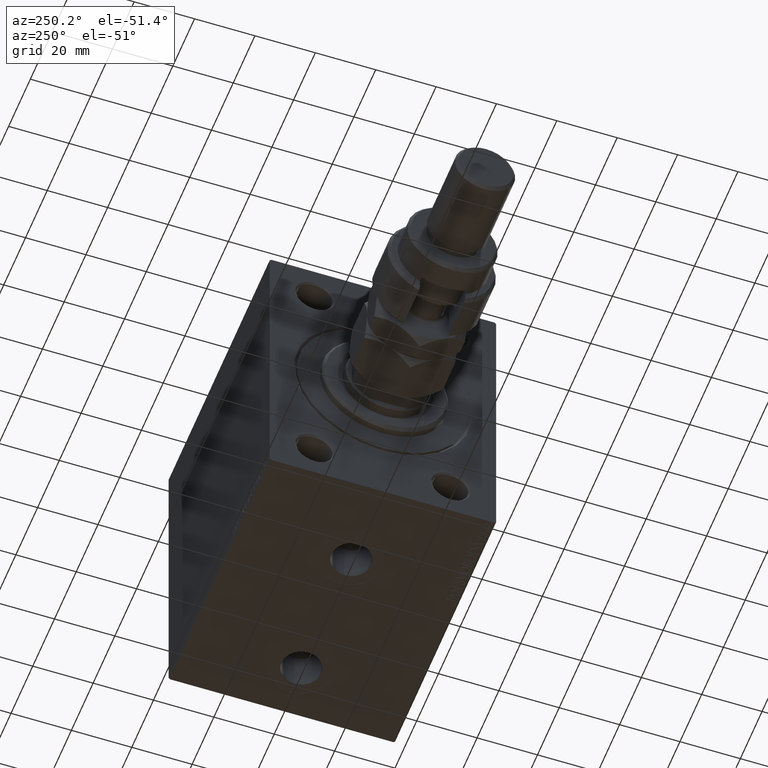
[diagram: clean part render]
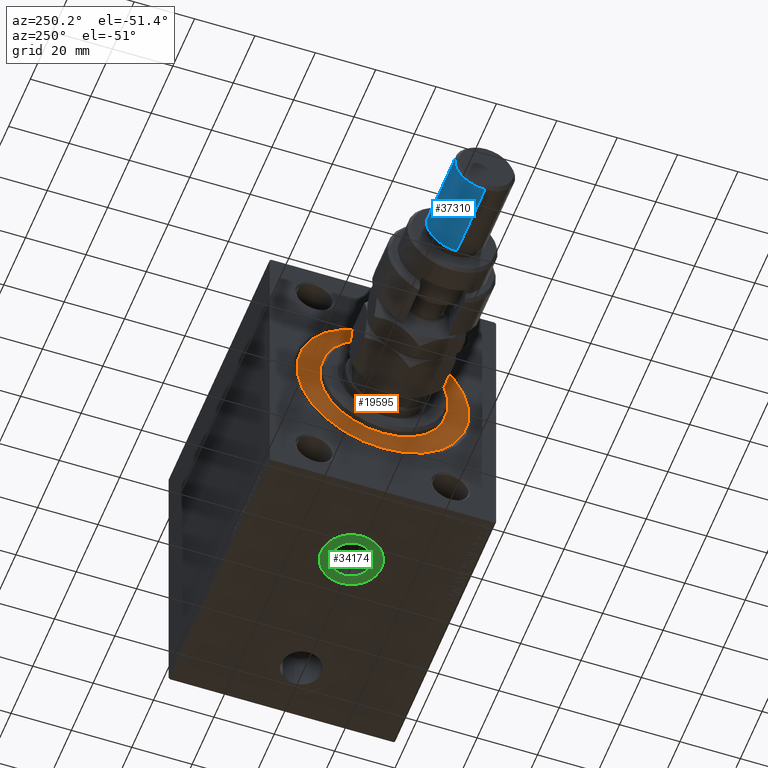
[diagram: same view with three faces highlighted in distinct colors, each labeled with its STEP entity id]
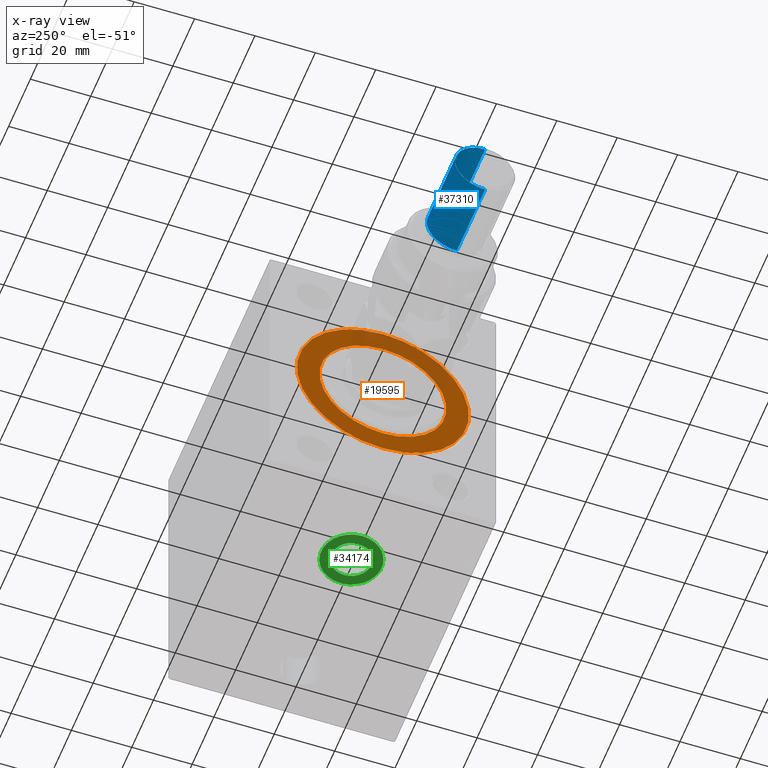
[diagram: x-ray of the same camera — body ghosted, the three highlighted faces saturated]
A machine part, auxiliary view with three faces highlighted in distinct colors.
The next image is the same camera in x-ray (body ghosted, the three faces saturated) — at least one of them is partly hidden behind the body in this view.
Their STEP definitions:

[orange] entity #19595 — the highlighted planar face has unit normal (1, -0, -0).
#4603 = ORIENTED_EDGE ( 'NONE', *, *, #32243, .F. ) ;
#4729 = CIRCLE ( 'NONE', #43763, 28.50000000000000000 ) ;
#4829 = AXIS2_PLACEMENT_3D ( 'NONE', #41017, #25162, #44220 ) ;
#5394 = FACE_OUTER_BOUND ( 'NONE', #6129, .T. ) ;
#5594 = CARTESIAN_POINT ( 'NONE',  ( 0.000000000000000000, 0.000000000000000000, -28.50000000000000000 ) ) ;
#6129 = EDGE_LOOP ( 'NONE', ( #37578, #13031 ) ) ;
#7191 = EDGE_LOOP ( 'NONE', ( #4603, #33677 ) ) ;
#8404 = CARTESIAN_POINT ( 'NONE',  ( 0.000000000000000000, 0.000000000000000000, 0.000000000000000000 ) ) ;
#8814 = DIRECTION ( 'NONE',  ( 0.000000000000000000, 0.000000000000000000, -1.000000000000000000 ) ) ;
#9135 = DIRECTION ( 'NONE',  ( 0.000000000000000000, 0.000000000000000000, 1.000000000000000000 ) ) ;
#13031 = ORIENTED_EDGE ( 'NONE', *, *, #41735, .F. ) ;
#14086 = AXIS2_PLACEMENT_3D ( 'NONE', #46454, #39355, #16144 ) ;
#15508 = EDGE_CURVE ( 'NONE', #44605, #42994, #4729, .T. ) ;
#16144 = DIRECTION ( 'NONE',  ( 0.000000000000000000, 0.000000000000000000, 1.000000000000000000 ) ) ;
#18546 = CIRCLE ( 'NONE', #24801, 21.00000000000000000 ) ;
#19595 = ADVANCED_FACE ( 'NONE', ( #20544, #5394 ), #20777, .F. ) ;
#20119 = CIRCLE ( 'NONE', #47462, 21.00000000000000000 ) ;
#20544 = FACE_BOUND ( 'NONE', #7191, .T. ) ;
#20777 = PLANE ( 'NONE',  #14086 ) ;
#24801 = AXIS2_PLACEMENT_3D ( 'NONE', #30566, #27139, #8814 ) ;
#25162 = DIRECTION ( 'NONE',  ( -1.000000000000000000, 0.000000000000000000, 0.000000000000000000 ) ) ;
#26567 = VERTEX_POINT ( 'NONE', #30879 ) ;
#26949 = CARTESIAN_POINT ( 'NONE',  ( 0.000000000000000000, 0.000000000000000000, 0.000000000000000000 ) ) ;
#27139 = DIRECTION ( 'NONE',  ( 1.000000000000000000, -0.000000000000000000, 0.000000000000000000 ) ) ;
#28704 = EDGE_CURVE ( 'NONE', #43430, #26567, #20119, .T. ) ;
#29905 = DIRECTION ( 'NONE',  ( 0.000000000000000000, 0.000000000000000000, -1.000000000000000000 ) ) ;
#30566 = CARTESIAN_POINT ( 'NONE',  ( 0.000000000000000000, 0.000000000000000000, 0.000000000000000000 ) ) ;
#30879 = CARTESIAN_POINT ( 'NONE',  ( 0.000000000000000000, 0.000000000000000000, 21.00000000000000000 ) ) ;
#32243 = EDGE_CURVE ( 'NONE', #26567, #43430, #18546, .T. ) ;
#33677 = ORIENTED_EDGE ( 'NONE', *, *, #28704, .F. ) ;
#33739 = CIRCLE ( 'NONE', #4829, 28.50000000000000000 ) ;
#34087 = DIRECTION ( 'NONE',  ( -1.000000000000000000, 0.000000000000000000, 0.000000000000000000 ) ) ;
#37578 = ORIENTED_EDGE ( 'NONE', *, *, #15508, .F. ) ;
#39355 = DIRECTION ( 'NONE',  ( -1.000000000000000000, 0.000000000000000000, 0.000000000000000000 ) ) ;
#41017 = CARTESIAN_POINT ( 'NONE',  ( 0.000000000000000000, 0.000000000000000000, 0.000000000000000000 ) ) ;
#41735 = EDGE_CURVE ( 'NONE', #42994, #44605, #33739, .T. ) ;
#41860 = DIRECTION ( 'NONE',  ( 1.000000000000000000, -0.000000000000000000, 0.000000000000000000 ) ) ;
#42994 = VERTEX_POINT ( 'NONE', #44647 ) ;
#43430 = VERTEX_POINT ( 'NONE', #46162 ) ;
#43763 = AXIS2_PLACEMENT_3D ( 'NONE', #8404, #34087, #9135 ) ;
#44220 = DIRECTION ( 'NONE',  ( 0.000000000000000000, 0.000000000000000000, 1.000000000000000000 ) ) ;
#44605 = VERTEX_POINT ( 'NONE', #5594 ) ;
#44647 = CARTESIAN_POINT ( 'NONE',  ( 0.000000000000000000, 3.490243377569956456E-15, 28.50000000000000000 ) ) ;
#46162 = CARTESIAN_POINT ( 'NONE',  ( 0.000000000000000000, 2.571758278209441661E-15, -21.00000000000000000 ) ) ;
#46454 = CARTESIAN_POINT ( 'NONE',  ( 0.000000000000000000, 0.000000000000000000, 0.000000000000000000 ) ) ;
#47462 = AXIS2_PLACEMENT_3D ( 'NONE', #26949, #41860, #29905 ) ;

[blue] entity #37310 — the highlighted cylindrical surface (edge-blend (fillet) strip) has radius 10 mm, axis along (1, -0, -0).
#140 = EDGE_CURVE ( 'NONE', #43535, #37388, #3252, .T. ) ;
#934 = ORIENTED_EDGE ( 'NONE', *, *, #1496, .T. ) ;
#1083 = ORIENTED_EDGE ( 'NONE', *, *, #140, .F. ) ;
#1496 = EDGE_CURVE ( 'NONE', #24896, #20481, #22715, .T. ) ;
#2875 = CARTESIAN_POINT ( 'NONE',  ( -10.00000000000000000, 0.000000000000000000, 54.99999999999998579 ) ) ;
#3150 = ORIENTED_EDGE ( 'NONE', *, *, #16861, .T. ) ;
#3252 = LINE ( 'NONE', #36971, #45666 ) ;
#4690 = CIRCLE ( 'NONE', #43726, 10.00000000000000000 ) ;
#4746 = DIRECTION ( 'NONE',  ( -0.000000000000000000, -0.000000000000000000, -1.000000000000000000 ) ) ;
#7531 = CARTESIAN_POINT ( 'NONE',  ( 0.000000000000000000, 0.000000000000000000, 54.99999999999998579 ) ) ;
#8897 = CYLINDRICAL_SURFACE ( 'NONE', #33585, 10.00000000000000000 ) ;
#10293 = DIRECTION ( 'NONE',  ( 1.000000000000000000, 0.000000000000000000, 0.000000000000000000 ) ) ;
#13900 = EDGE_LOOP ( 'NONE', ( #3150, #934, #23377, #1083 ) ) ;
#15862 = DIRECTION ( 'NONE',  ( -0.000000000000000000, -0.000000000000000000, -1.000000000000000000 ) ) ;
#16848 = VECTOR ( 'NONE', #15862, 1000.000000000000000 ) ;
#16861 = EDGE_CURVE ( 'NONE', #43535, #24896, #18036, .T. ) ;
#18036 = CIRCLE ( 'NONE', #28171, 10.00000000000000000 ) ;
#20481 = VERTEX_POINT ( 'NONE', #35645 ) ;
#22715 = LINE ( 'NONE', #37149, #16848 ) ;
#23377 = ORIENTED_EDGE ( 'NONE', *, *, #37623, .T. ) ;
#24290 = DIRECTION ( 'NONE',  ( -1.000000000000000000, 0.000000000000000000, 0.000000000000000000 ) ) ;
#24896 = VERTEX_POINT ( 'NONE', #40677 ) ;
#26580 = DIRECTION ( 'NONE',  ( 1.000000000000000000, 0.000000000000000000, 0.000000000000000000 ) ) ;
#28124 = CARTESIAN_POINT ( 'NONE',  ( 0.000000000000000000, 0.000000000000000000, 29.00000000000000711 ) ) ;
#28171 = AXIS2_PLACEMENT_3D ( 'NONE', #7531, #30250, #26580 ) ;
#28188 = CARTESIAN_POINT ( 'NONE',  ( -10.00000000000000000, 0.000000000000000000, 29.00000000000000711 ) ) ;
#30250 = DIRECTION ( 'NONE',  ( 0.000000000000000000, 0.000000000000000000, -1.000000000000000000 ) ) ;
#31132 = CARTESIAN_POINT ( 'NONE',  ( 0.000000000000000000, 0.000000000000000000, 56.00000000000000711 ) ) ;
#33585 = AXIS2_PLACEMENT_3D ( 'NONE', #31132, #4746, #24290 ) ;
#35052 = FACE_OUTER_BOUND ( 'NONE', #13900, .T. ) ;
#35645 = CARTESIAN_POINT ( 'NONE',  ( 10.00000000000000000, 1.224646799147353256E-15, 29.00000000000000711 ) ) ;
#36971 = CARTESIAN_POINT ( 'NONE',  ( -10.00000000000000000, 0.000000000000000000, 56.00000000000000711 ) ) ;
#37149 = CARTESIAN_POINT ( 'NONE',  ( 10.00000000000000000, 1.224646799147353256E-15, 56.00000000000000711 ) ) ;
#37310 = ADVANCED_FACE ( 'NONE', ( #35052 ), #8897, .T. ) ;
#37388 = VERTEX_POINT ( 'NONE', #28188 ) ;
#37623 = EDGE_CURVE ( 'NONE', #20481, #37388, #4690, .T. ) ;
#40677 = CARTESIAN_POINT ( 'NONE',  ( 10.00000000000000000, 1.224646799147353256E-15, 54.99999999999998579 ) ) ;
#43535 = VERTEX_POINT ( 'NONE', #2875 ) ;
#43726 = AXIS2_PLACEMENT_3D ( 'NONE', #28124, #47210, #10293 ) ;
#45666 = VECTOR ( 'NONE', #47739, 1000.000000000000000 ) ;
#47210 = DIRECTION ( 'NONE',  ( -0.000000000000000000, -0.000000000000000000, 1.000000000000000000 ) ) ;
#47739 = DIRECTION ( 'NONE',  ( -0.000000000000000000, -0.000000000000000000, -1.000000000000000000 ) ) ;

[green] entity #34174 — the highlighted planar face has unit normal (0, 0, -1).
#3408 = DIRECTION ( 'NONE',  ( 0.000000000000000000, 0.000000000000000000, -1.000000000000000000 ) ) ;
#4059 = EDGE_CURVE ( 'NONE', #8959, #36982, #42703, .T. ) ;
#4131 = ORIENTED_EDGE ( 'NONE', *, *, #9879, .F. ) ;
#4244 = CARTESIAN_POINT ( 'NONE',  ( 19.00000000000000355, -3.767935990684166618E-15, -49.89999999999999858 ) ) ;
#4629 = CIRCLE ( 'NONE', #31908, 9.999999999999998224 ) ;
#4941 = ORIENTED_EDGE ( 'NONE', *, *, #11824, .T. ) ;
#5016 = DIRECTION ( 'NONE',  ( 0.000000000000000000, 0.000000000000000000, -1.000000000000000000 ) ) ;
#8436 = DIRECTION ( 'NONE',  ( 0.000000000000000000, 0.000000000000000000, -1.000000000000000000 ) ) ;
#8959 = VERTEX_POINT ( 'NONE', #21052 ) ;
#9879 = EDGE_CURVE ( 'NONE', #36982, #8959, #44317, .T. ) ;
#11824 = EDGE_CURVE ( 'NONE', #29613, #12514, #38920, .T. ) ;
#11908 = DIRECTION ( 'NONE',  ( -1.000000000000000000, 0.000000000000000000, 0.000000000000000000 ) ) ;
#12514 = VERTEX_POINT ( 'NONE', #37416 ) ;
#12742 = EDGE_CURVE ( 'NONE', #12514, #29613, #4629, .T. ) ;
#13095 = AXIS2_PLACEMENT_3D ( 'NONE', #30607, #34520, #38902 ) ;
#15536 = DIRECTION ( 'NONE',  ( -1.000000000000000000, 0.000000000000000000, -0.000000000000000000 ) ) ;
#15770 = CARTESIAN_POINT ( 'NONE',  ( 29.00000000000000000, -3.767935990684166618E-15, -49.89999999999999858 ) ) ;
#17965 = EDGE_LOOP ( 'NONE', ( #4941, #47979 ) ) ;
#19443 = PLANE ( 'NONE',  #21762 ) ;
#19693 = FACE_BOUND ( 'NONE', #36938, .T. ) ;
#21052 = CARTESIAN_POINT ( 'NONE',  ( 35.57999999999999829, -2.962118396845207576E-15, -49.89999999999999858 ) ) ;
#21730 = CARTESIAN_POINT ( 'NONE',  ( 29.00000000000000000, -3.767935990684166618E-15, -49.89999999999999858 ) ) ;
#21762 = AXIS2_PLACEMENT_3D ( 'NONE', #24076, #8436, #15536 ) ;
#24076 = CARTESIAN_POINT ( 'NONE',  ( 0.000000000000000000, 0.000000000000000000, -49.89999999999999858 ) ) ;
#26425 = AXIS2_PLACEMENT_3D ( 'NONE', #15770, #5016, #34829 ) ;
#27056 = DIRECTION ( 'NONE',  ( 0.000000000000000000, 0.000000000000000000, -1.000000000000000000 ) ) ;
#28486 = CARTESIAN_POINT ( 'NONE',  ( 22.41999999999999815, -3.767935990684166618E-15, -49.89999999999999858 ) ) ;
#29613 = VERTEX_POINT ( 'NONE', #4244 ) ;
#30607 = CARTESIAN_POINT ( 'NONE',  ( 29.00000000000000000, -3.767935990684166618E-15, -49.89999999999999858 ) ) ;
#31908 = AXIS2_PLACEMENT_3D ( 'NONE', #21730, #3408, #32990 ) ;
#32990 = DIRECTION ( 'NONE',  ( -1.000000000000000000, 0.000000000000000000, 0.000000000000000000 ) ) ;
#34174 = ADVANCED_FACE ( 'NONE', ( #19693, #45604 ), #19443, .T. ) ;
#34520 = DIRECTION ( 'NONE',  ( 0.000000000000000000, 0.000000000000000000, -1.000000000000000000 ) ) ;
#34829 = DIRECTION ( 'NONE',  ( -1.000000000000000000, 0.000000000000000000, 0.000000000000000000 ) ) ;
#36938 = EDGE_LOOP ( 'NONE', ( #4131, #38445 ) ) ;
#36982 = VERTEX_POINT ( 'NONE', #28486 ) ;
#37416 = CARTESIAN_POINT ( 'NONE',  ( 39.00000000000000000, -2.543289191536813953E-15, -49.89999999999999858 ) ) ;
#38445 = ORIENTED_EDGE ( 'NONE', *, *, #4059, .F. ) ;
#38786 = AXIS2_PLACEMENT_3D ( 'NONE', #45404, #27056, #11908 ) ;
#38902 = DIRECTION ( 'NONE',  ( -1.000000000000000000, 0.000000000000000000, 0.000000000000000000 ) ) ;
#38920 = CIRCLE ( 'NONE', #26425, 9.999999999999998224 ) ;
#42703 = CIRCLE ( 'NONE', #38786, 6.580000000000002736 ) ;
#44317 = CIRCLE ( 'NONE', #13095, 6.580000000000002736 ) ;
#45404 = CARTESIAN_POINT ( 'NONE',  ( 29.00000000000000000, -3.767935990684166618E-15, -49.89999999999999858 ) ) ;
#45604 = FACE_OUTER_BOUND ( 'NONE', #17965, .T. ) ;
#47979 = ORIENTED_EDGE ( 'NONE', *, *, #12742, .T. ) ;